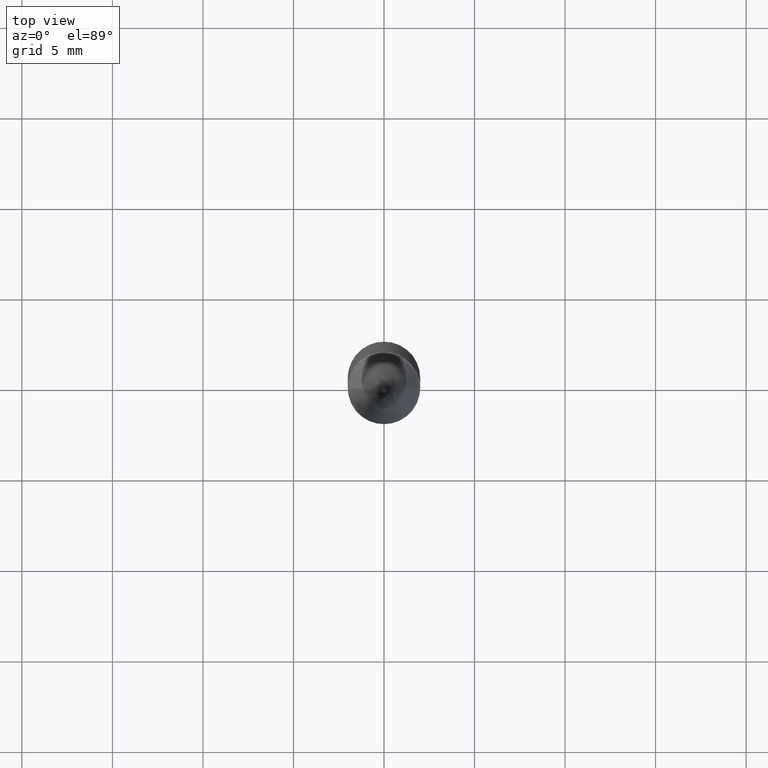
[diagram: clean part render]
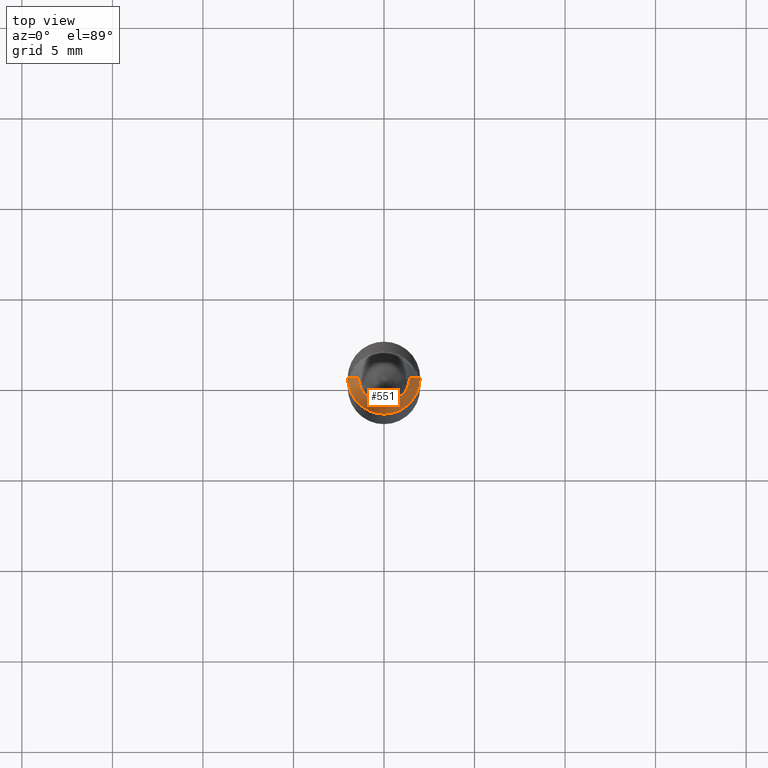
[diagram: same view with one face highlighted and labeled with its STEP entity id]
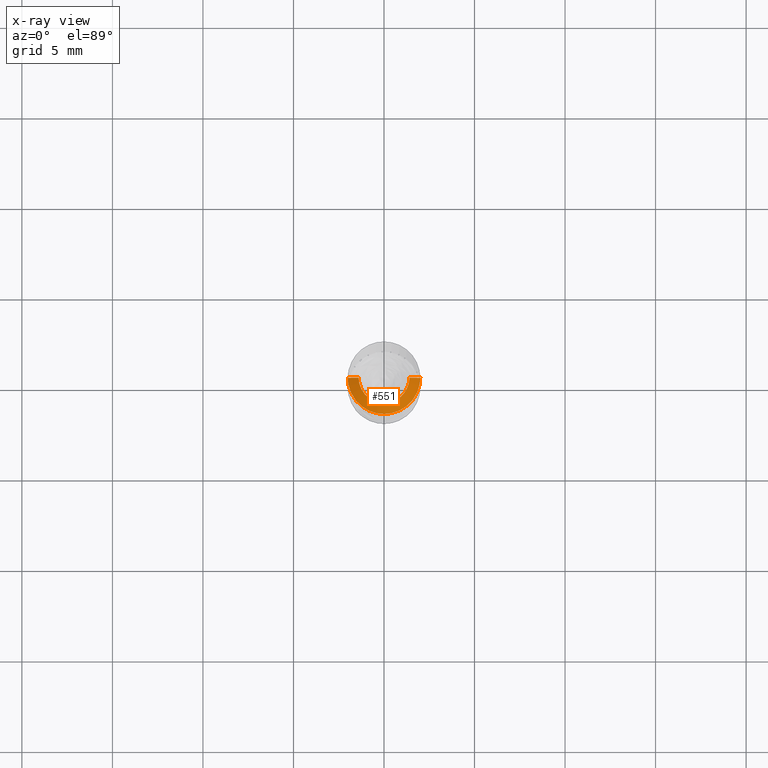
[diagram: x-ray of the same camera — body ghosted, the highlighted face saturated]
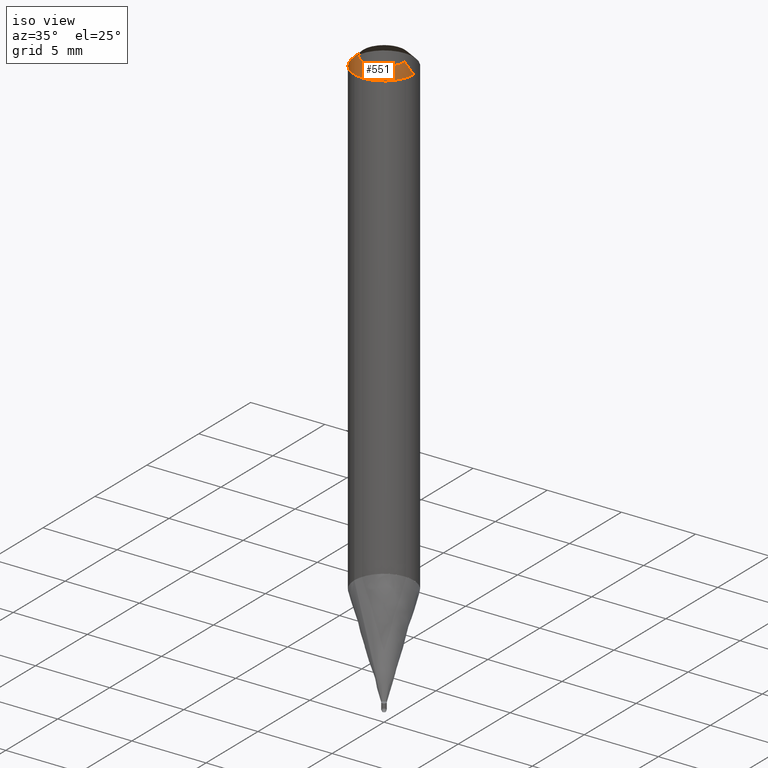
[diagram: same view with one face highlighted and labeled with its STEP entity id]
A machine part, top view. The second image highlights one B-rep face of the part: STEP entity #551.
The next image is the same camera in x-ray: the body ghosted, the highlighted face saturated — about 0% of this face is hidden behind the body in this view.
A second angle (iso view) of the same face is appended — the face is thin or edge-on in the first view.
In plain terms, the highlighted face is a freeform B-spline surface patch.
Its self-contained STEP definition (entity closure, byte-faithful):
#208=CARTESIAN_POINT('',(2.0,0.0,31.895));
#212=CARTESIAN_POINT('',(-2.0,0.0,31.895));
#213=CARTESIAN_POINT('',(1.4,0.0,32.495));
#217=CARTESIAN_POINT('',(-1.4,0.0,32.495));
#225=CARTESIAN_POINT('',(-2.0,-2.0,31.895));
#226=CARTESIAN_POINT('',(0.0,-2.0,31.895));
#227=CARTESIAN_POINT('',(2.0,-2.0,31.895));
#228=CARTESIAN_POINT('',(-1.4,-1.4,32.495));
#229=CARTESIAN_POINT('',(0.0,-1.4,32.495));
#230=CARTESIAN_POINT('',(1.4,-1.4,32.495));
#532=(
BOUNDED_SURFACE()
B_SPLINE_SURFACE(1,2,(
(#212,#225,#226,#227,#208),
(#217,#228,#229,#230,#213)
), .UNSPECIFIED.,.F.,.F.,.F.)
B_SPLINE_SURFACE_WITH_KNOTS((2,2),(3,2,3),(
0.0,1.0),(
0.0,0.5,1.0), .UNSPECIFIED.)
GEOMETRIC_REPRESENTATION_ITEM()
RATIONAL_B_SPLINE_SURFACE(((1.0,0.707106781187,1.0,0.707106781187,1.0),
(1.0,0.707106781187,1.0,0.707106781187,1.0)
))
REPRESENTATION_ITEM('')
SURFACE()
);
#533=(
BOUNDED_CURVE()
B_SPLINE_CURVE(2,(#217,#228,#229,#230,#213),.UNSPECIFIED.,.F.,.F.)
B_SPLINE_CURVE_WITH_KNOTS((3,2,3),
(0.0,0.5,1.0),.UNSPECIFIED.)
CURVE()
GEOMETRIC_REPRESENTATION_ITEM()
RATIONAL_B_SPLINE_CURVE((1.0,0.707106781187,1.0,0.707106781187,1.0))
REPRESENTATION_ITEM('')
);
#534=(
BOUNDED_CURVE()
B_SPLINE_CURVE(1,(#213,#208),.UNSPECIFIED.,.F.,.F.)
B_SPLINE_CURVE_WITH_KNOTS((2,2),
(0.0,1.0),.UNSPECIFIED.)
CURVE()
GEOMETRIC_REPRESENTATION_ITEM()
RATIONAL_B_SPLINE_CURVE((1.0,1.0))
REPRESENTATION_ITEM('')
);
#535=(
BOUNDED_CURVE()
B_SPLINE_CURVE(2,(#208,#227,#226,#225,#212),.UNSPECIFIED.,.F.,.F.)
B_SPLINE_CURVE_WITH_KNOTS((3,2,3),
(0.0,0.5,1.0),.UNSPECIFIED.)
CURVE()
GEOMETRIC_REPRESENTATION_ITEM()
RATIONAL_B_SPLINE_CURVE((1.0,0.707106781187,1.0,0.707106781187,1.0))
REPRESENTATION_ITEM('')
);
#536=(
BOUNDED_CURVE()
B_SPLINE_CURVE(1,(#212,#217),.UNSPECIFIED.,.F.,.F.)
B_SPLINE_CURVE_WITH_KNOTS((2,2),
(0.0,1.0),.UNSPECIFIED.)
CURVE()
GEOMETRIC_REPRESENTATION_ITEM()
RATIONAL_B_SPLINE_CURVE((1.0,1.0))
REPRESENTATION_ITEM('')
);
#537=VERTEX_POINT('',#208);
#538=VERTEX_POINT('',#212);
#539=VERTEX_POINT('',#213);
#540=VERTEX_POINT('',#217);
#541=EDGE_CURVE('',#540,#539,#533,.T.);
#542=EDGE_CURVE('',#539,#537,#534,.T.);
#543=EDGE_CURVE('',#537,#538,#535,.T.);
#544=EDGE_CURVE('',#538,#540,#536,.T.);
#545=ORIENTED_EDGE('',*,*,#541,.T.);
#546=ORIENTED_EDGE('',*,*,#542,.T.);
#547=ORIENTED_EDGE('',*,*,#543,.T.);
#548=ORIENTED_EDGE('',*,*,#544,.T.);
#549=EDGE_LOOP('',(#545,#546,#547,#548));
#550=FACE_OUTER_BOUND('',#549,.T.);
#551=ADVANCED_FACE('',(#550),#532,.T.);